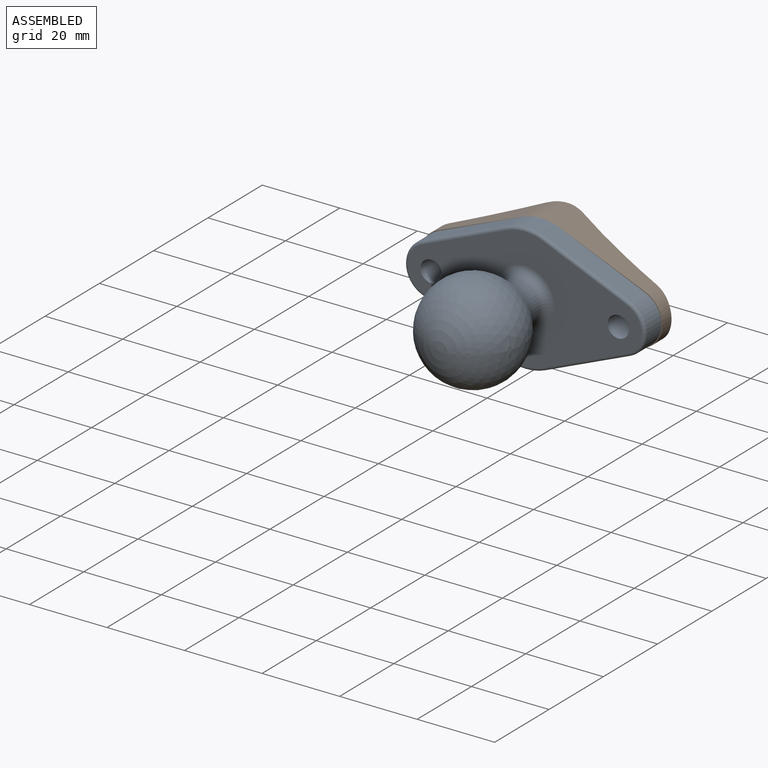
[diagram: assembled view]
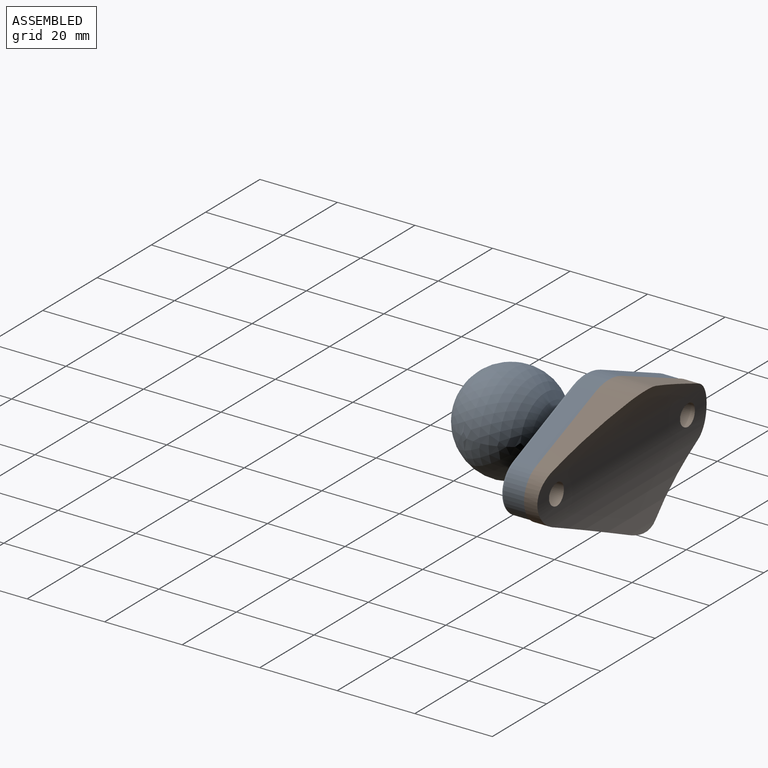
[diagram: assembled view, second angle]
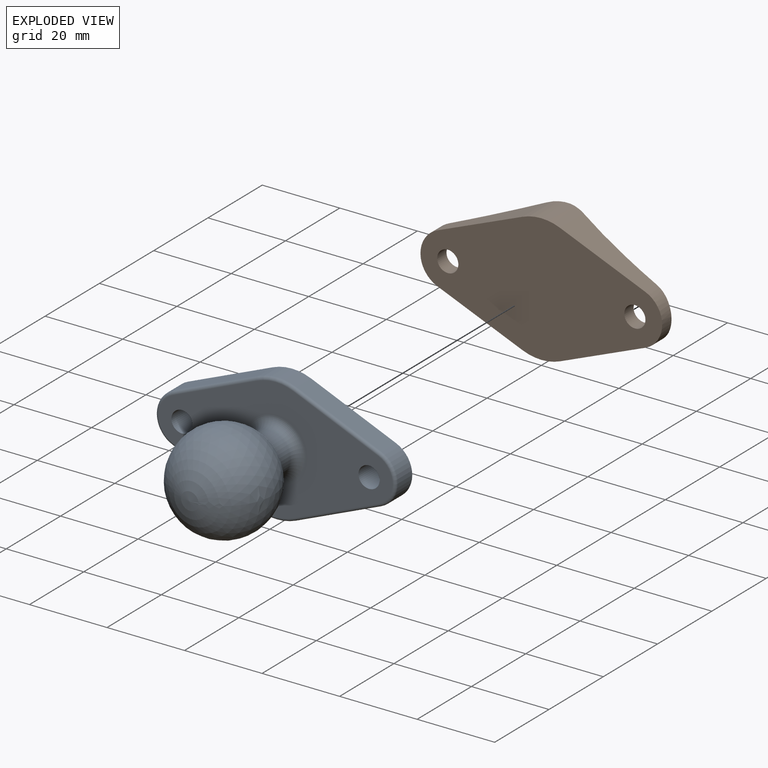
[diagram: exploded view]
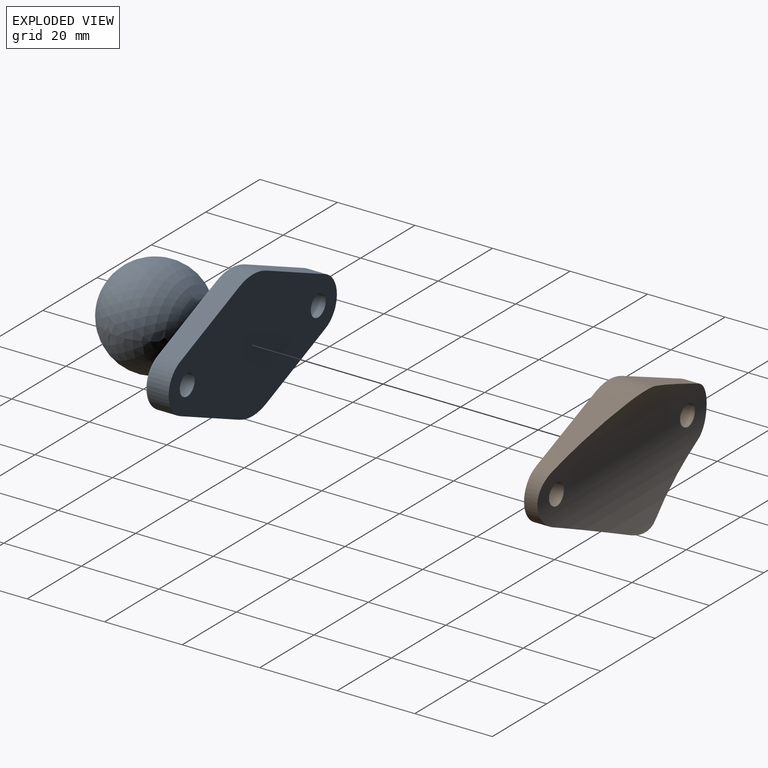
[diagram: exploded view, second angle]
ASSEMBLY  parts=2 mates=3
PART A: 23 faces, bbox 63.1x35.1x37.9 mm
  f0: cylinder r=6.86mm len=12.64mm, axis (0,0,1), area 85.7mm2, adj f1,f4,f6,f9
  f1: plane 21.87x9.2mm, normal (-0.39,-0.92,0), area 126.4mm2, adj f0,f2,f4,f7
  f2: cylinder r=12.7mm len=9.85mm, axis (0,0,1), area 53.9mm2, adj f1,f4,f8,f14
  f3: cylinder r=2.73mm len=6.12mm, axis (0,0,1), area 105mm2, adj f4,f5
  f4: plane 61.98x33.02mm, normal (0,0,-1), area 1303.6mm2, adj f0,f1,f2,f3,f9,f10,f13,f14
  f5: plane 60.39x31.43mm, normal (0,0,1), area 995.5mm2, adj f3,f6,f7,f8,f11,f12,f15,f16
  f6: torus R=6.06mm, axis (0,0,1), area 19.2mm2, adj f0,f5,f7,f11
  f7: cylinder r=0.79mm len=22.17mm, axis (0.92,-0.39,0), area 29.6mm2, adj f1,f5,f6,f8
  f8: torus R=11.91mm, axis (0,0,1), area 12.3mm2, adj f2,f5,f7,f17
  f9: plane 21.87x9.2mm, normal (-0.39,0.92,0), area 126.4mm2, adj f0,f4,f10,f11
  f10: cylinder r=12.7mm len=9.85mm, axis (0,0,1), area 53.9mm2, adj f4,f9,f12,f18
  f11: cylinder r=0.79mm len=22.17mm, axis (0.92,0.39,0), area 29.6mm2, adj f5,f6,f9,f12
  f12: torus R=11.91mm, axis (0,0,1), area 12.3mm2, adj f5,f10,f11,f19
  f13: cylinder r=6.86mm len=12.64mm, axis (0,0,1), area 85.7mm2, adj f4,f14,f16,f18
  f14: plane 21.87x9.2mm, normal (0.39,-0.92,0), area 126.4mm2, adj f2,f4,f13,f17
  f15: cylinder r=2.73mm len=6.12mm, axis (0,0,1), area 105mm2, adj f4,f5
  f16: torus R=6.06mm, axis (0,0,1), area 19.2mm2, adj f5,f13,f17,f19
  f17: cylinder r=0.79mm len=22.17mm, axis (-0.92,-0.39,0), area 29.6mm2, adj f5,f8,f14,f16
  f18: plane 21.87x9.2mm, normal (0.39,0.92,0), area 126.4mm2, adj f4,f10,f13,f19
  f19: cylinder r=0.79mm len=22.17mm, axis (-0.92,0.39,0), area 29.6mm2, adj f5,f12,f16,f18
  f20: sphere r=12.7mm, area 1928.4mm2, adj f21
  f21: cylinder r=5.46mm len=10.92mm, axis (0,0,-1), area 178.5mm2, adj f20,f22
  f22: torus R=7.84mm, axis (0,0,-1), area 148.7mm2, adj f5,f21
PART B: 12 faces, bbox 62.4x9.5x33 mm
  f0: plane 62.36x33.02mm, normal (0,-1,0), area 1318.9mm2, adj f2,f3,f4,f5,f6,f7,f8,f9
  f1: cylinder r=25.4mm len=62.36mm, axis (1,0,0), area 1386.5mm2, adj f2,f3,f4,f5,f6,f7,f8,f9
  f2: plane 21.98x9.04mm, normal (0.38,0,-0.92), area 145.8mm2, adj f0,f1,f3,f9
  f3: cylinder r=7.05mm len=13.04mm, axis (0,-1,0), area 62.8mm2, adj f0,f1,f2,f4
  f4: plane 21.98x9.04mm, normal (0.38,0,0.92), area 145.8mm2, adj f0,f1,f3,f5
  f5: cylinder r=12.7mm len=9.66mm, axis (0,-1,0), area 91.7mm2, adj f0,f1,f4,f6
  f6: plane 21.98x9.04mm, normal (-0.38,0,0.92), area 145.8mm2, adj f0,f1,f5,f7
  f7: cylinder r=7.05mm len=13.04mm, axis (0,-1,0), area 62.8mm2, adj f0,f1,f6,f8
  f8: plane 21.98x9.04mm, normal (-0.38,0,-0.92), area 145.8mm2, adj f0,f1,f7,f9
  f9: cylinder r=12.7mm len=9.66mm, axis (0,-1,0), area 91.7mm2, adj f0,f1,f2,f8
  f10: cylinder r=2.73mm len=5.46mm, axis (0,-1,0), area 60.1mm2, adj f0,f1
  f11: cylinder r=2.73mm len=5.46mm, axis (0,-1,0), area 60.1mm2, adj f0,f1
PLACE A rot(axis=(0,-0.71,0.71),180deg) t=(0,-6.12,0)mm
PLACE B at identity
MATE planar A.f4 <-> B.f0  axis (0,1,0) through (-15.86,0,-10.92)mm
MATE cylindrical A.f3 <-> B.f11  axis (0,-1,0) through (24.13,-3.06,0)mm
MATE cylindrical B.f10 <-> A.f15  axis (0,-1,0) through (-24.13,0,0)mm
